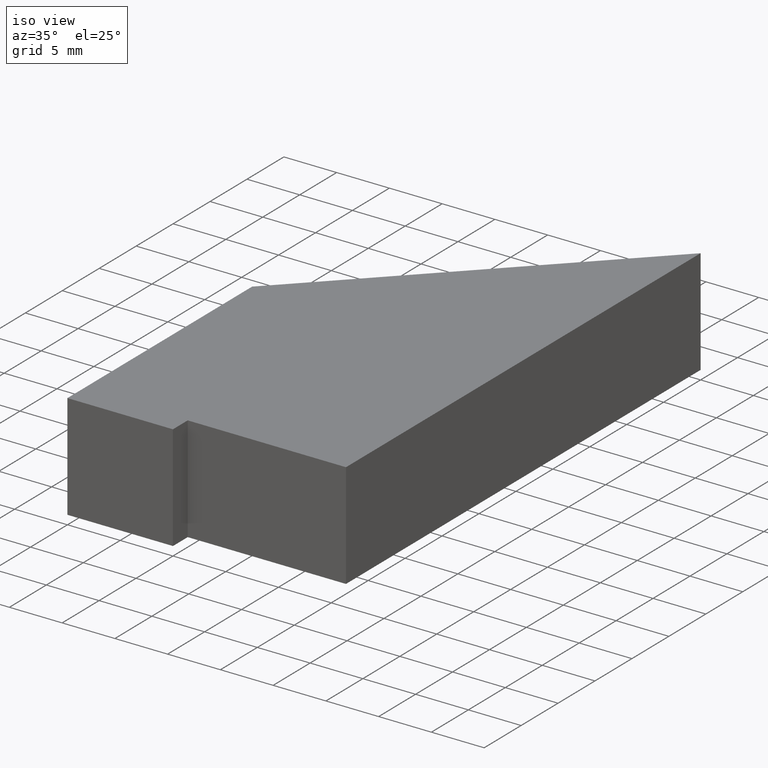
[diagram: clean part render]
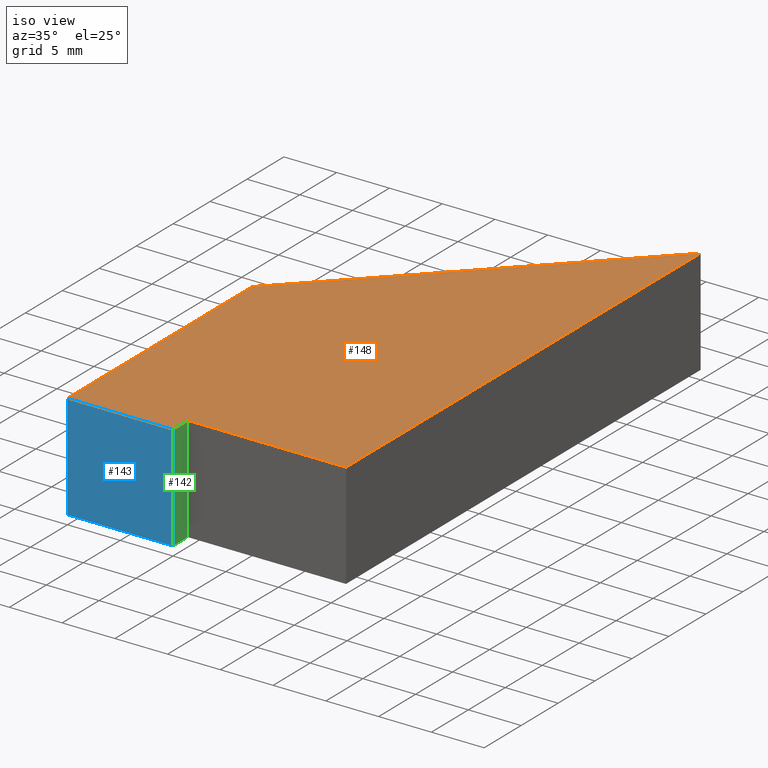
[diagram: same view with three faces highlighted in distinct colors, each labeled with its STEP entity id]
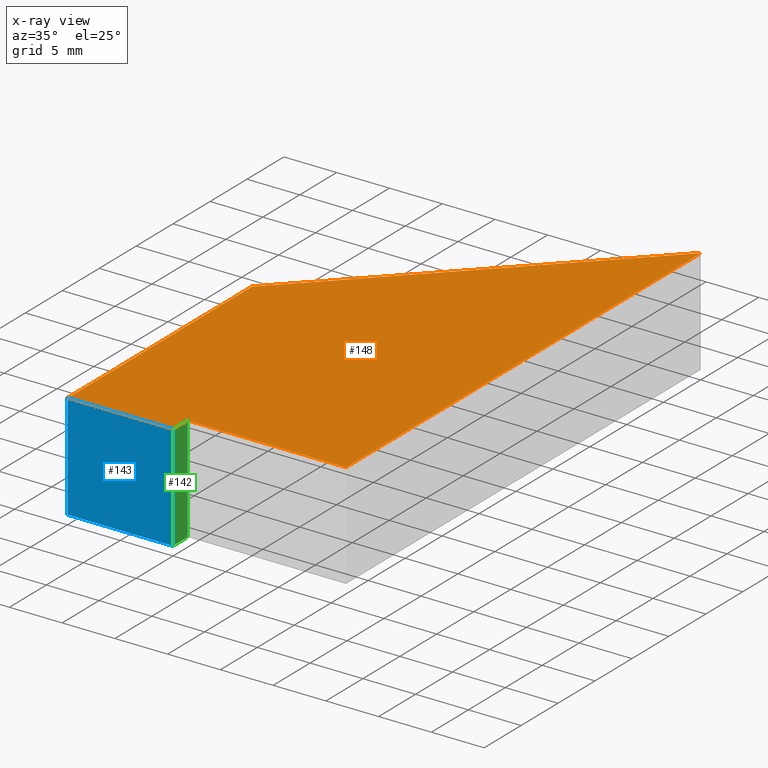
[diagram: x-ray of the same camera — body ghosted, the three highlighted faces saturated]
A machine part, iso view with three faces highlighted in distinct colors.
The next image is the same camera in x-ray (body ghosted, the three faces saturated) — at least one of them is partly hidden behind the body in this view.
Their STEP definitions:

[orange] entity #148 — the highlighted planar face has unit normal (0, 0, 1).
#22=FACE_OUTER_BOUND('',#30,.T.);
#30=EDGE_LOOP('',(#127,#128,#129,#130,#131,#132));
#37=LINE('',#233,#55);
#40=LINE('',#238,#58);
#42=LINE('',#242,#60);
#44=LINE('',#246,#62);
#46=LINE('',#250,#64);
#48=LINE('',#253,#66);
#55=VECTOR('',#192,10.);
#58=VECTOR('',#197,10.);
#60=VECTOR('',#201,10.);
#62=VECTOR('',#205,10.);
#64=VECTOR('',#209,10.);
#66=VECTOR('',#213,10.);
#73=VERTEX_POINT('',#231);
#74=VERTEX_POINT('',#232);
#75=VERTEX_POINT('',#237);
#76=VERTEX_POINT('',#241);
#77=VERTEX_POINT('',#245);
#78=VERTEX_POINT('',#249);
#85=EDGE_CURVE('',#73,#74,#37,.T.);
#88=EDGE_CURVE('',#74,#75,#40,.T.);
#90=EDGE_CURVE('',#75,#76,#42,.T.);
#92=EDGE_CURVE('',#76,#77,#44,.T.);
#94=EDGE_CURVE('',#77,#78,#46,.T.);
#96=EDGE_CURVE('',#78,#73,#48,.T.);
#127=ORIENTED_EDGE('',*,*,#85,.F.);
#128=ORIENTED_EDGE('',*,*,#96,.F.);
#129=ORIENTED_EDGE('',*,*,#94,.F.);
#130=ORIENTED_EDGE('',*,*,#92,.F.);
#131=ORIENTED_EDGE('',*,*,#90,.F.);
#132=ORIENTED_EDGE('',*,*,#88,.F.);
#140=PLANE('',#179);
#148=ADVANCED_FACE('',(#22),#140,.T.);
#179=AXIS2_PLACEMENT_3D('',#254,#214,#215);
#192=DIRECTION('',(0.,-1.,0.));
#197=DIRECTION('',(-1.,-1.22464679914735E-16,0.));
#201=DIRECTION('',(-5.32907051820075E-16,1.,0.));
#205=DIRECTION('',(0.707106781186548,0.707106781186548,0.));
#209=DIRECTION('',(3.23093751465998E-16,-1.,0.));
#213=DIRECTION('',(-1.,-1.66533453693773E-16,0.));
#214=DIRECTION('center_axis',(0.,0.,1.));
#215=DIRECTION('ref_axis',(1.,0.,0.));
#231=CARTESIAN_POINT('',(-15.,2.,5.));
#232=CARTESIAN_POINT('',(-15.,6.34257335271559E-16,5.));
#233=CARTESIAN_POINT('',(-15.,2.,5.));
#237=CARTESIAN_POINT('',(-25.,-5.90389463875795E-16,5.));
#238=CARTESIAN_POINT('',(-15.,6.34257335271559E-16,5.));
#241=CARTESIAN_POINT('',(-25.,25.,5.));
#242=CARTESIAN_POINT('',(-25.,-5.90389463875795E-16,5.));
#245=CARTESIAN_POINT('',(-8.88178419700125E-15,50.,5.));
#246=CARTESIAN_POINT('',(-25.,25.,5.));
#249=CARTESIAN_POINT('',(6.62671587336665E-15,2.,5.));
#250=CARTESIAN_POINT('',(-8.88178419700125E-15,50.,5.));
#253=CARTESIAN_POINT('',(6.62671587336665E-15,2.,5.));
#254=CARTESIAN_POINT('Origin',(-10.4129009467726,21.5604736023427,5.));

[blue] entity #143 — the highlighted planar face has unit normal (0, -1, 0).
#17=FACE_OUTER_BOUND('',#25,.T.);
#25=EDGE_LOOP('',(#107,#108,#109,#110));
#34=LINE('',#226,#52);
#38=LINE('',#234,#56);
#40=LINE('',#238,#58);
#41=LINE('',#239,#59);
#52=VECTOR('',#187,10.);
#56=VECTOR('',#193,10.);
#58=VECTOR('',#197,10.);
#59=VECTOR('',#198,10.);
#70=VERTEX_POINT('',#223);
#71=VERTEX_POINT('',#225);
#74=VERTEX_POINT('',#232);
#75=VERTEX_POINT('',#237);
#82=EDGE_CURVE('',#71,#70,#34,.T.);
#86=EDGE_CURVE('',#74,#70,#38,.T.);
#88=EDGE_CURVE('',#74,#75,#40,.T.);
#89=EDGE_CURVE('',#75,#71,#41,.T.);
#107=ORIENTED_EDGE('',*,*,#88,.T.);
#108=ORIENTED_EDGE('',*,*,#89,.T.);
#109=ORIENTED_EDGE('',*,*,#82,.T.);
#110=ORIENTED_EDGE('',*,*,#86,.F.);
#135=PLANE('',#174);
#143=ADVANCED_FACE('',(#17),#135,.T.);
#174=AXIS2_PLACEMENT_3D('',#236,#195,#196);
#187=DIRECTION('',(1.,1.22464679914735E-16,0.));
#193=DIRECTION('',(0.,0.,-1.));
#195=DIRECTION('center_axis',(1.22464679914735E-16,-1.,0.));
#196=DIRECTION('ref_axis',(0.,0.,-1.));
#197=DIRECTION('',(-1.,-1.22464679914735E-16,0.));
#198=DIRECTION('',(0.,0.,-1.));
#223=CARTESIAN_POINT('',(-15.,6.34257335271559E-16,-5.));
#225=CARTESIAN_POINT('',(-25.,-5.90389463875795E-16,-5.));
#226=CARTESIAN_POINT('',(-15.,6.34257335271559E-16,-5.));
#232=CARTESIAN_POINT('',(-15.,6.34257335271559E-16,5.));
#234=CARTESIAN_POINT('',(-15.,6.34257335271559E-16,0.));
#236=CARTESIAN_POINT('Origin',(-15.,6.34257335271559E-16,0.));
#237=CARTESIAN_POINT('',(-25.,-5.90389463875795E-16,5.));
#238=CARTESIAN_POINT('',(-15.,6.34257335271559E-16,5.));
#239=CARTESIAN_POINT('',(-25.,-5.90389463875795E-16,0.));

[green] entity #142 — the highlighted planar face has unit normal (1, 0, 0).
#16=FACE_OUTER_BOUND('',#24,.T.);
#24=EDGE_LOOP('',(#103,#104,#105,#106));
#33=LINE('',#224,#51);
#37=LINE('',#233,#55);
#38=LINE('',#234,#56);
#39=LINE('',#235,#57);
#51=VECTOR('',#186,10.);
#55=VECTOR('',#192,10.);
#56=VECTOR('',#193,10.);
#57=VECTOR('',#194,10.);
#69=VERTEX_POINT('',#221);
#70=VERTEX_POINT('',#223);
#73=VERTEX_POINT('',#231);
#74=VERTEX_POINT('',#232);
#81=EDGE_CURVE('',#70,#69,#33,.T.);
#85=EDGE_CURVE('',#73,#74,#37,.T.);
#86=EDGE_CURVE('',#74,#70,#38,.T.);
#87=EDGE_CURVE('',#73,#69,#39,.T.);
#103=ORIENTED_EDGE('',*,*,#85,.T.);
#104=ORIENTED_EDGE('',*,*,#86,.T.);
#105=ORIENTED_EDGE('',*,*,#81,.T.);
#106=ORIENTED_EDGE('',*,*,#87,.F.);
#134=PLANE('',#173);
#142=ADVANCED_FACE('',(#16),#134,.T.);
#173=AXIS2_PLACEMENT_3D('',#230,#190,#191);
#186=DIRECTION('',(0.,1.,0.));
#190=DIRECTION('center_axis',(1.,0.,0.));
#191=DIRECTION('ref_axis',(0.,0.,-1.));
#192=DIRECTION('',(0.,-1.,0.));
#193=DIRECTION('',(0.,0.,-1.));
#194=DIRECTION('',(0.,0.,-1.));
#221=CARTESIAN_POINT('',(-15.,2.,-5.));
#223=CARTESIAN_POINT('',(-15.,6.34257335271559E-16,-5.));
#224=CARTESIAN_POINT('',(-15.,2.,-5.));
#230=CARTESIAN_POINT('Origin',(-15.,2.,0.));
#231=CARTESIAN_POINT('',(-15.,2.,5.));
#232=CARTESIAN_POINT('',(-15.,6.34257335271559E-16,5.));
#233=CARTESIAN_POINT('',(-15.,2.,5.));
#234=CARTESIAN_POINT('',(-15.,6.34257335271559E-16,0.));
#235=CARTESIAN_POINT('',(-15.,2.,0.));